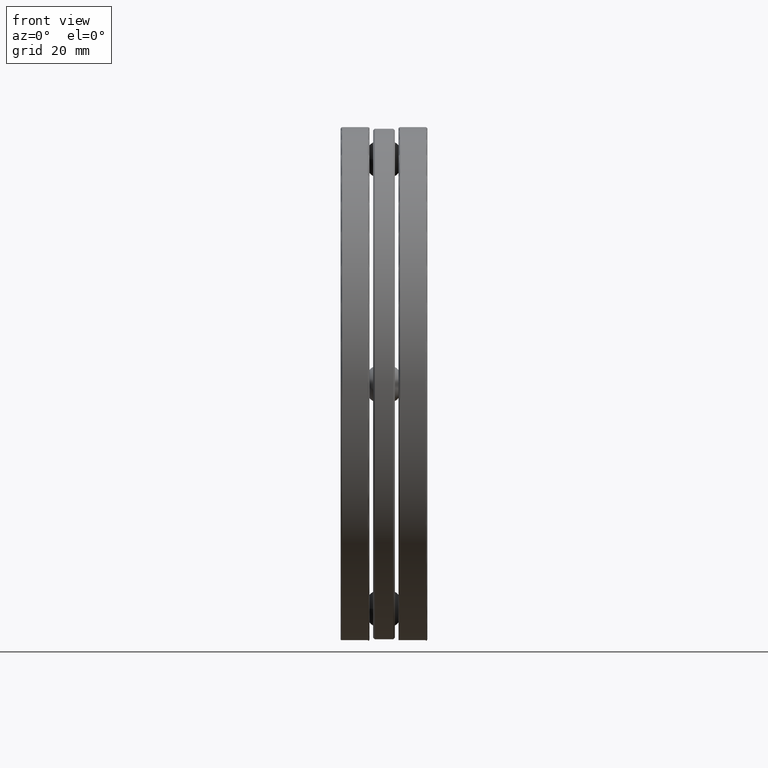
[diagram: clean part render]
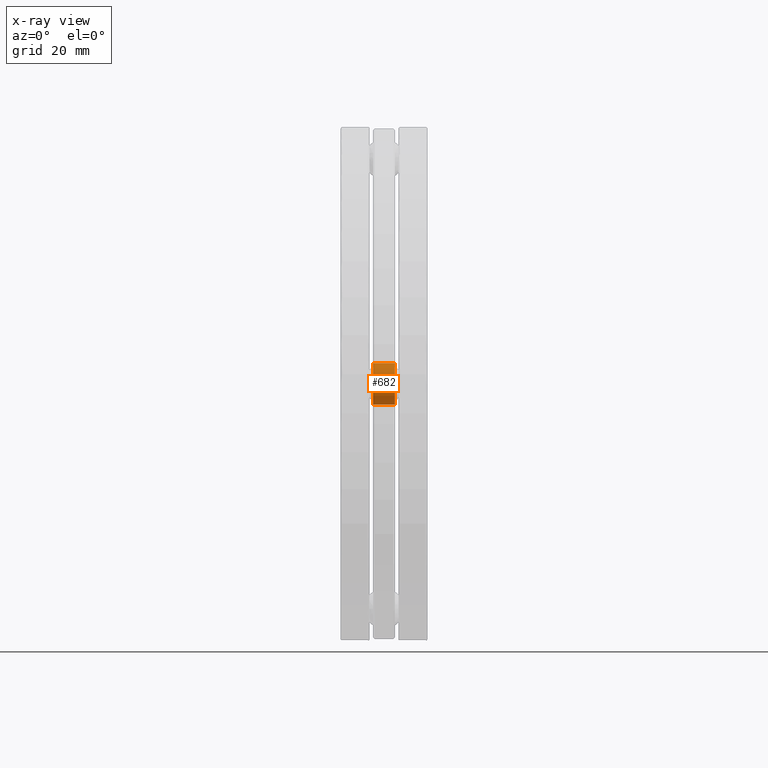
[diagram: x-ray — body ghosted, one internal face saturated and labeled with its STEP entity id]
A machine part, front view, then the same camera in x-ray: the body is ghosted and one INTERNAL B-rep face — a face not visible from any outside direction — is saturated and labeled: STEP entity #682.
In plain terms, the highlighted cylindrical surface (bore or boss wall) has radius 6.477 mm, axis along (1, -0, -0).
Its self-contained STEP definition (entity closure, byte-faithful):
#8 = CYLINDRICAL_SURFACE ( 'NONE', #475, 0.2550000000000000600 ) ;
#54 = CARTESIAN_POINT ( 'NONE',  ( -0.1328749999999998800, 2.755750000000000400, 0.0000000000000000000 ) ) ;
#69 = CARTESIAN_POINT ( 'NONE',  ( -0.5315393700787400800, 2.755750000000000400, 0.0000000000000000000 ) ) ;
#100 = CIRCLE ( 'NONE', #814, 0.2550000000000000600 ) ;
#133 = DIRECTION ( 'NONE',  ( 1.000000000000000000, -0.0000000000000000000, -0.0000000000000000000 ) ) ;
#158 = CARTESIAN_POINT ( 'NONE',  ( 0.1328750000000000200, 2.755750000000000400, -0.2550000000000000600 ) ) ;
#191 = ORIENTED_EDGE ( 'NONE', *, *, #216, .T. ) ;
#216 = EDGE_CURVE ( 'NONE', #615, #615, #100, .T. ) ;
#233 = CARTESIAN_POINT ( 'NONE',  ( -0.1328749999999998800, 2.755750000000000400, -0.2550000000000000600 ) ) ;
#245 = ORIENTED_EDGE ( 'NONE', *, *, #547, .T. ) ;
#293 = CARTESIAN_POINT ( 'NONE',  ( 0.1328750000000000200, 2.755750000000000400, 0.0000000000000000000 ) ) ;
#318 = DIRECTION ( 'NONE',  ( 0.0000000000000000000, 0.0000000000000000000, -1.000000000000000000 ) ) ;
#417 = FACE_OUTER_BOUND ( 'NONE', #824, .T. ) ;
#465 = EDGE_LOOP ( 'NONE', ( #191 ) ) ;
#475 = AXIS2_PLACEMENT_3D ( 'NONE', #69, #133, #505 ) ;
#503 = DIRECTION ( 'NONE',  ( -1.000000000000000000, -0.0000000000000000000, -0.0000000000000000000 ) ) ;
#505 = DIRECTION ( 'NONE',  ( 0.0000000000000000000, 0.0000000000000000000, -1.000000000000000000 ) ) ;
#547 = EDGE_CURVE ( 'NONE', #628, #628, #576, .T. ) ;
#576 = CIRCLE ( 'NONE', #652, 0.2550000000000000600 ) ;
#615 = VERTEX_POINT ( 'NONE', #158 ) ;
#628 = VERTEX_POINT ( 'NONE', #233 ) ;
#652 = AXIS2_PLACEMENT_3D ( 'NONE', #54, #503, #318 ) ;
#662 = DIRECTION ( 'NONE',  ( 0.0000000000000000000, 0.0000000000000000000, -1.000000000000000000 ) ) ;
#682 = ADVANCED_FACE ( 'NONE', ( #791, #417 ), #8, .F. ) ;
#713 = DIRECTION ( 'NONE',  ( 1.000000000000000000, -0.0000000000000000000, 0.0000000000000000000 ) ) ;
#791 = FACE_OUTER_BOUND ( 'NONE', #465, .T. ) ;
#814 = AXIS2_PLACEMENT_3D ( 'NONE', #293, #713, #662 ) ;
#824 = EDGE_LOOP ( 'NONE', ( #245 ) ) ;